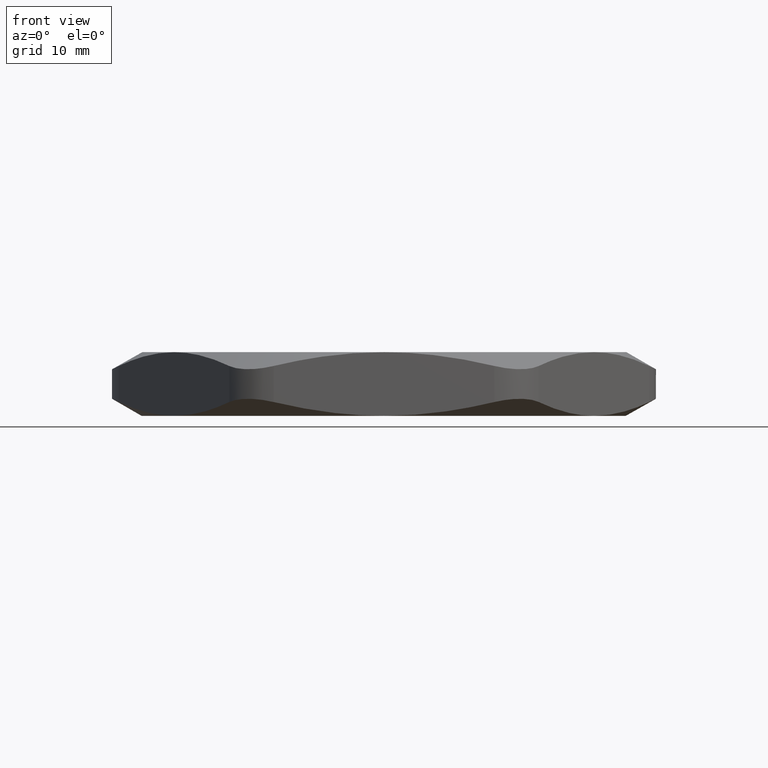
[diagram: clean part render]
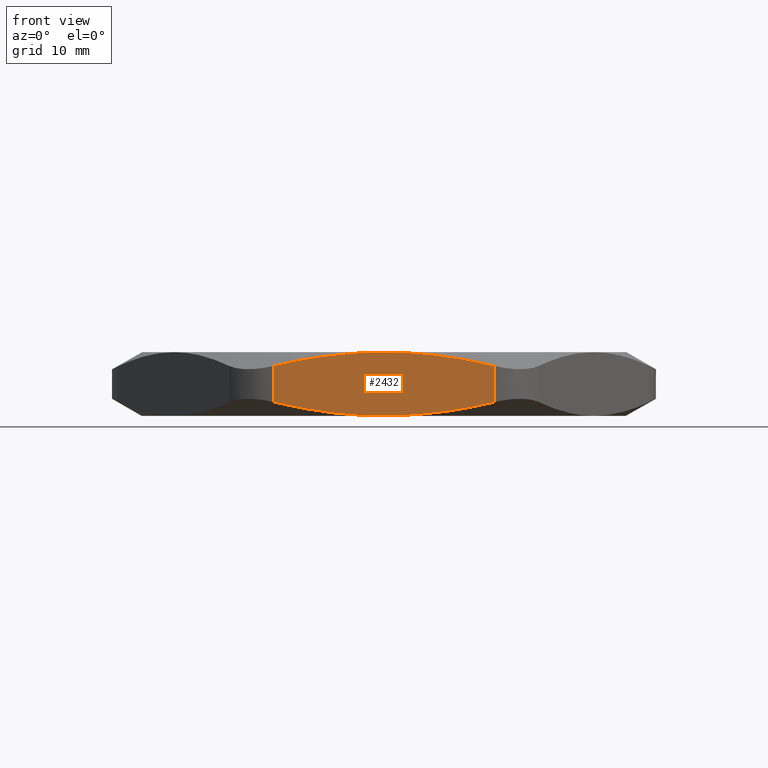
[diagram: same view with one face highlighted and labeled with its STEP entity id]
A machine part, front view. The second image highlights one B-rep face of the part: STEP entity #2432.
In plain terms, the highlighted planar face has unit normal (-0, 1, 0).
Its self-contained STEP definition (entity closure, byte-faithful):
#1248 = CARTESIAN_POINT ( 'NONE',  ( 2.365849761790801500E-016, -1.179999999999999900, 0.3100000000000000000 ) ) ;
#1249 = CARTESIAN_POINT ( 'NONE',  ( -0.09043671930185660800, -1.179999999999999900, 0.3100000000000001600 ) ) ;
#1250 = CARTESIAN_POINT ( 'NONE',  ( -0.1803601917600251800, -1.179999999999999500, 0.3039296812339023500 ) ) ;
#1251 = CARTESIAN_POINT ( 'NONE',  ( -0.3592866603774269600, -1.180000000000000200, 0.2809023044652400000 ) ) ;
#1252 = CARTESIAN_POINT ( 'NONE',  ( -0.4483414298499406300, -1.179999999999999700, 0.2639706617955099900 ) ) ;
#1253 = CARTESIAN_POINT ( 'NONE',  ( -0.5369357503462982600, -1.179999999999999900, 0.2427859541343179400 ) ) ;
#1254 = CARTESIAN_POINT ( 'NONE',  ( -0.5369357503463523300, -1.179999999999999900, 0.06721404586569511300 ) ) ;
#1255 = B_SPLINE_CURVE_WITH_KNOTS ( 'NONE', 3,
 ( #1253, #1252, #1251, #1250, #1249, #1248 ),
 .UNSPECIFIED., .F., .F.,
 ( 4, 2, 4 ),
 ( 0.03544491570111547200, 0.04231837440594568600, 0.04919183311077590700 ),
 .UNSPECIFIED. ) ;
#1287 = DIRECTION ( 'NONE',  ( -1.000000000000000000, -2.004957425246442400E-016, 0.0000000000000000000 ) ) ;
#1288 = DIRECTION ( 'NONE',  ( -2.004957425246442400E-016, 1.000000000000000000, 0.0000000000000000000 ) ) ;
#1289 = CARTESIAN_POINT ( 'NONE',  ( -0.6812733176437586500, -1.179999999999999900, 0.3100000000000000000 ) ) ;
#1290 = AXIS2_PLACEMENT_3D ( 'NONE', #1289, #1288, #1287 ) ;
#1291 = PLANE ( 'NONE',  #1290 ) ;
#1292 = FACE_OUTER_BOUND ( 'NONE', #2572, .T. ) ;
#1306 = DIRECTION ( 'NONE',  ( 0.0000000000000000000, 0.0000000000000000000, 1.000000000000000000 ) ) ;
#1307 = VECTOR ( 'NONE', #1306, 39.37007874015748100 ) ;
#1308 = CARTESIAN_POINT ( 'NONE',  ( 0.5369357503463518800, -1.179999999999999700, 0.3100000000000000000 ) ) ;
#1309 = LINE ( 'NONE', #1308, #1307 ) ;
#1310 = CARTESIAN_POINT ( 'NONE',  ( 2.365849761790802000E-016, -1.180000000000000200, 0.0000000000000000000 ) ) ;
#1311 = CARTESIAN_POINT ( 'NONE',  ( 0.04513680144218985800, -1.179999999999999500, -2.407707826447263200E-016 ) ) ;
#1312 = CARTESIAN_POINT ( 'NONE',  ( 0.09040044257290004400, -1.180000000000000200, 0.001500169657117304800 ) ) ;
#1313 = CARTESIAN_POINT ( 'NONE',  ( 0.1584856043568609000, -1.180000000000000200, 0.005994061912108385500 ) ) ;
#1314 = CARTESIAN_POINT ( 'NONE',  ( 0.1812379093699328400, -1.179999999999999900, 0.007868708027574654700 ) ) ;
#1315 = CARTESIAN_POINT ( 'NONE',  ( 0.2264847364169943800, -1.179999999999999700, 0.01231598222474834300 ) ) ;
#1316 = CARTESIAN_POINT ( 'NONE',  ( 0.2490155983964343600, -1.179999999999999900, 0.01489006772394748500 ) ) ;
#1317 = CARTESIAN_POINT ( 'NONE',  ( 0.3612328827272187100, -1.179999999999999500, 0.02941530187154136500 ) ) ;
#1318 = CARTESIAN_POINT ( 'NONE',  ( 0.4496078843157641500, -1.179999999999999300, 0.04633217327872736500 ) ) ;
#1319 = CARTESIAN_POINT ( 'NONE',  ( 0.5369357503463522100, -1.179999999999999700, 0.06721404586569487700 ) ) ;
#1320 = CARTESIAN_POINT ( 'NONE',  ( 0.5369357503463522100, -1.179999999999999700, 0.06721404586569487700 ) ) ;
#1321 = B_SPLINE_CURVE_WITH_KNOTS ( 'NONE', 3,
 ( #1319, #1318, #1317, #1316, #1315, #1314, #1313, #1312, #1311, #1310 ),
 .UNSPECIFIED., .F., .F.,
 ( 4, 2, 2, 2, 4 ),
 ( 0.08256158071241076500, 0.08942644235430620400, 0.09114265776478007500, 0.09285887317525393100, 0.09629130399620164400 ),
 .UNSPECIFIED. ) ;
#1322 = CARTESIAN_POINT ( 'NONE',  ( 2.365849761790802000E-016, -1.180000000000000200, 0.0000000000000000000 ) ) ;
#1512 = CARTESIAN_POINT ( 'NONE',  ( 0.5369357503463522100, -1.179999999999999700, 0.2427859541343050900 ) ) ;
#1513 = CARTESIAN_POINT ( 'NONE',  ( 0.4496078843157642600, -1.179999999999999500, 0.2636678267212726500 ) ) ;
#1514 = CARTESIAN_POINT ( 'NONE',  ( 0.3612328827272187600, -1.179999999999999900, 0.2805846981284586500 ) ) ;
#1515 = CARTESIAN_POINT ( 'NONE',  ( 0.2490155983964342800, -1.179999999999999900, 0.2951099322760525300 ) ) ;
#1516 = CARTESIAN_POINT ( 'NONE',  ( 0.2264847364169941000, -1.180000000000000200, 0.2976840177752518300 ) ) ;
#1517 = CARTESIAN_POINT ( 'NONE',  ( 0.1812379093699325600, -1.179999999999999700, 0.3021312919724253300 ) ) ;
#1518 = CARTESIAN_POINT ( 'NONE',  ( 0.1584856043568612100, -1.179999999999999500, 0.3040059380878916100 ) ) ;
#1519 = CARTESIAN_POINT ( 'NONE',  ( 0.09040044257290041900, -1.179999999999999900, 0.3084998303428827000 ) ) ;
#1520 = CARTESIAN_POINT ( 'NONE',  ( 0.04513680144219005300, -1.179999999999999900, 0.3100000000000001600 ) ) ;
#1521 = CARTESIAN_POINT ( 'NONE',  ( 2.365849761790801500E-016, -1.179999999999999900, 0.3100000000000000000 ) ) ;
#1522 = CARTESIAN_POINT ( 'NONE',  ( 2.365849761790801500E-016, -1.179999999999999900, 0.3100000000000000000 ) ) ;
#1523 = B_SPLINE_CURVE_WITH_KNOTS ( 'NONE', 3,
 ( #1521, #1520, #1519, #1518, #1517, #1516, #1515, #1514, #1513, #1512 ),
 .UNSPECIFIED., .F., .F.,
 ( 4, 2, 2, 2, 4 ),
 ( 0.04919183311077590700, 0.05262236379760327300, 0.05433762914101695300, 0.05605289448443063300, 0.06291395585808536000 ),
 .UNSPECIFIED. ) ;
#1524 = CARTESIAN_POINT ( 'NONE',  ( 0.5369357503463522100, -1.179999999999999700, 0.2427859541343050900 ) ) ;
#1932 = CARTESIAN_POINT ( 'NONE',  ( -0.5369357503462982600, -1.179999999999999900, 0.2427859541343179400 ) ) ;
#2043 = DIRECTION ( 'NONE',  ( 0.0000000000000000000, 0.0000000000000000000, -1.000000000000000000 ) ) ;
#2044 = VECTOR ( 'NONE', #2043, 39.37007874015748100 ) ;
#2045 = CARTESIAN_POINT ( 'NONE',  ( -0.5369357503463522100, -1.179999999999999900, 0.3100000000000000000 ) ) ;
#2046 = LINE ( 'NONE', #2045, #2044 ) ;
#2058 = CARTESIAN_POINT ( 'NONE',  ( -0.5369357503463523300, -1.179999999999999900, 0.06721404586569511300 ) ) ;
#2059 = CARTESIAN_POINT ( 'NONE',  ( -0.4483414298499867100, -1.179999999999999900, 0.04602933820449919800 ) ) ;
#2060 = CARTESIAN_POINT ( 'NONE',  ( -0.3592866603774632100, -1.179999999999999500, 0.02909769553476565500 ) ) ;
#2061 = CARTESIAN_POINT ( 'NONE',  ( -0.1803601917600436700, -1.179999999999999900, 0.006070318766098837900 ) ) ;
#2062 = CARTESIAN_POINT ( 'NONE',  ( -0.09043671930186598900, -1.179999999999999900, -2.280986361897407400E-016 ) ) ;
#2063 = CARTESIAN_POINT ( 'NONE',  ( 2.365849761790802000E-016, -1.180000000000000200, 0.0000000000000000000 ) ) ;
#2078 = B_SPLINE_CURVE_WITH_KNOTS ( 'NONE', 3,
 ( #2063, #2062, #2061, #2060, #2059, #2058 ),
 .UNSPECIFIED., .F., .F.,
 ( 4, 2, 4 ),
 ( 0.09629130399620164400, 0.1031685698360219200, 0.1100458356758422000 ),
 .UNSPECIFIED. ) ;
#2420 = EDGE_CURVE ( 'NONE', #2743, #2541, #1255, .T. ) ;
#2421 = ORIENTED_EDGE ( 'NONE', *, *, #2784, .T. ) ;
#2422 = VERTEX_POINT ( 'NONE', #1254 ) ;
#2432 = ADVANCED_FACE ( 'NONE', ( #1292 ), #1291, .F. ) ;
#2433 = ORIENTED_EDGE ( 'NONE', *, *, #2443, .F. ) ;
#2443 = EDGE_CURVE ( 'NONE', #2444, #2445, #1321, .T. ) ;
#2444 = VERTEX_POINT ( 'NONE', #1320 ) ;
#2445 = VERTEX_POINT ( 'NONE', #1322 ) ;
#2446 = ORIENTED_EDGE ( 'NONE', *, *, #2447, .T. ) ;
#2447 = EDGE_CURVE ( 'NONE', #2444, #2538, #1309, .T. ) ;
#2538 = VERTEX_POINT ( 'NONE', #1524 ) ;
#2539 = ORIENTED_EDGE ( 'NONE', *, *, #2540, .F. ) ;
#2540 = EDGE_CURVE ( 'NONE', #2541, #2538, #1523, .T. ) ;
#2541 = VERTEX_POINT ( 'NONE', #1522 ) ;
#2572 = EDGE_LOOP ( 'NONE', ( #2433, #2446, #2539, #2742, #2421, #2796 ) ) ;
#2742 = ORIENTED_EDGE ( 'NONE', *, *, #2420, .F. ) ;
#2743 = VERTEX_POINT ( 'NONE', #1932 ) ;
#2784 = EDGE_CURVE ( 'NONE', #2743, #2422, #2046, .T. ) ;
#2796 = ORIENTED_EDGE ( 'NONE', *, *, #2797, .F. ) ;
#2797 = EDGE_CURVE ( 'NONE', #2445, #2422, #2078, .T. ) ;